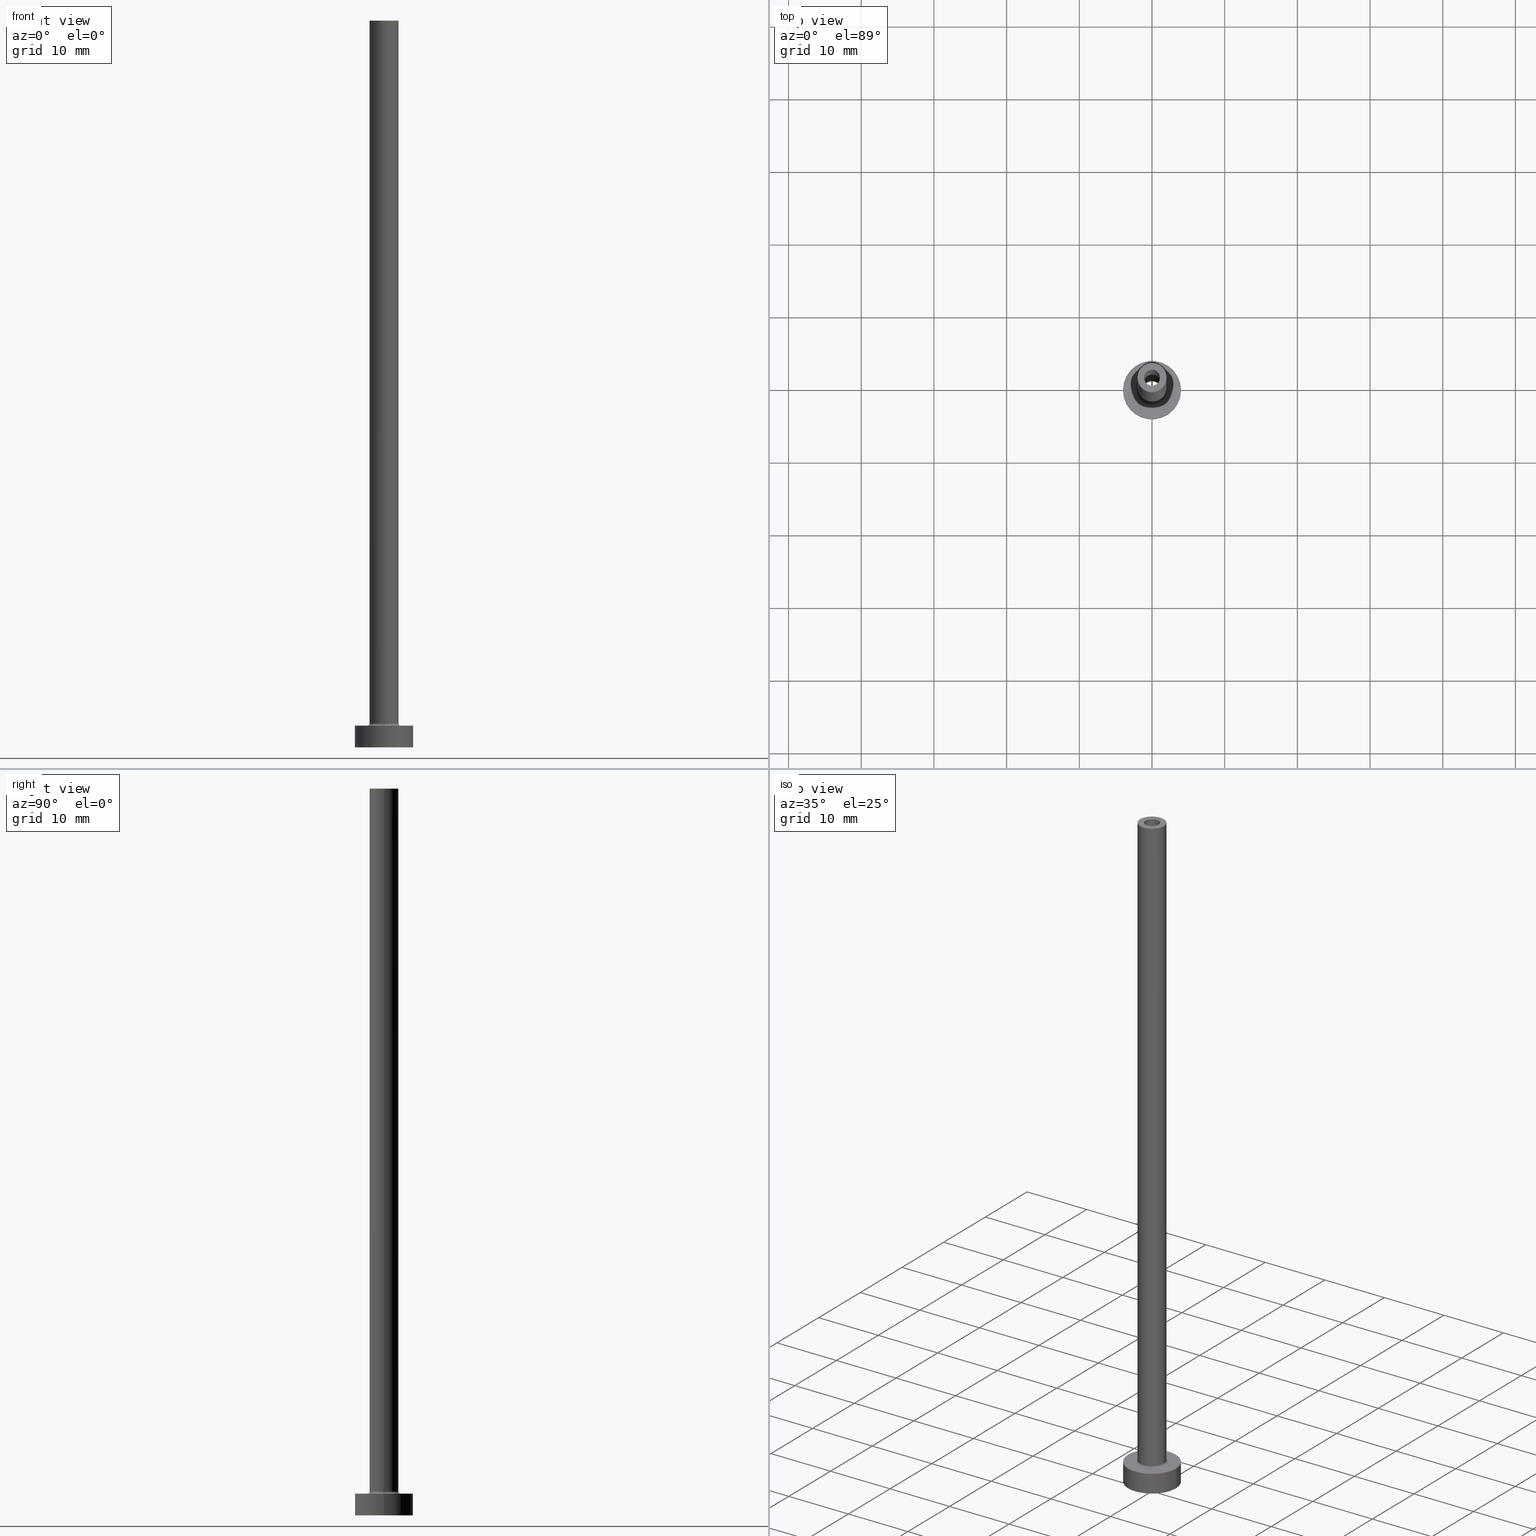
[diagram: canonical four-view strip — front | top / right | iso, engineering-drawing reading convention]
A machine part, canonical four-view strip (front | top / right | iso — engineering-drawing reading convention). The complete STEP part file that produces these views, byte-faithful:
ISO-10303-21;
HEADER;
FILE_DESCRIPTION (( 'STEP AP203' ),
    '1' );
FILE_NAME ('f12d.STEP',
    '2023-02-13T12:50:14',
    ( '' ),
    ( '' ),
    'SwSTEP 2.0',
    'SolidWorks 2019',
    '' );
FILE_SCHEMA (( 'CONFIG_CONTROL_DESIGN' ));
ENDSEC;

DATA;
#1 = ORIENTED_EDGE ( 'NONE', *, *, #113, .T. ) ;
#2 = DIRECTION ( 'NONE',  ( -1.000000000000000000, 0.000000000000000000, 0.000000000000000000 ) ) ;
#3 = CIRCLE ( 'NONE', #258, 1.100000000000000089 ) ;
#4 = APPROVAL_PERSON_ORGANIZATION ( #231, #61, #382 ) ;
#5 = ORIENTED_EDGE ( 'NONE', *, *, #443, .F. ) ;
#6 = DIRECTION ( 'NONE',  ( 0.000000000000000000, 0.000000000000000000, 1.000000000000000000 ) ) ;
#7 = EDGE_LOOP ( 'NONE', ( #195, #98, #68, #230 ) ) ;
#8 = DATE_AND_TIME ( #118, #378 ) ;
#9 = CARTESIAN_POINT ( 'NONE',  ( 0.000000000000000000, 0.000000000000000000, 3.000000000000000000 ) ) ;
#10 = PERSON_AND_ORGANIZATION_ROLE ( 'design_supplier' ) ;
#11 = CYLINDRICAL_SURFACE ( 'NONE', #271, 2.000000000000000000 ) ;
#12 = DATE_AND_TIME ( #307, #222 ) ;
#13 = ORIENTED_EDGE ( 'NONE', *, *, #232, .F. ) ;
#14 = CIRCLE ( 'NONE', #70, 4.000000000000000000 ) ;
#15 = LINE ( 'NONE', #227, #460 ) ;
#16 = EDGE_CURVE ( 'NONE', #356, #66, #377, .T. ) ;
#17 = DIRECTION ( 'NONE',  ( -0.000000000000000000, -0.000000000000000000, -1.000000000000000000 ) ) ;
#18 = VECTOR ( 'NONE', #57, 1000.000000000000000 ) ;
#19 = DIRECTION ( 'NONE',  ( 1.000000000000000000, 0.000000000000000000, 0.000000000000000000 ) ) ;
#20 = CARTESIAN_POINT ( 'NONE',  ( 0.000000000000000000, 0.000000000000000000, 3.000000000000000000 ) ) ;
#21 = ORIENTED_EDGE ( 'NONE', *, *, #147, .F. ) ;
#22 = ADVANCED_FACE ( 'NONE', ( #187, #48 ), #436, .F. ) ;
#23 = DATE_TIME_ROLE ( 'classification_date' ) ;
#24 = FACE_OUTER_BOUND ( 'NONE', #71, .T. ) ;
#25 = EDGE_CURVE ( 'NONE', #141, #418, #415, .T. ) ;
#26 = CC_DESIGN_APPROVAL ( #61, ( #131 ) ) ;
#27 = DIRECTION ( 'NONE',  ( 0.000000000000000000, 0.000000000000000000, -1.000000000000000000 ) ) ;
#28 = CARTESIAN_POINT ( 'NONE',  ( -4.000000000000000000, 0.000000000000000000, 3.000000000000000000 ) ) ;
#29 = ADVANCED_FACE ( 'NONE', ( #221 ), #152, .T. ) ;
#30 = FACE_OUTER_BOUND ( 'NONE', #93, .T. ) ;
#31 = LOCAL_TIME ( 13, 50, 14.00000000000000000, #297 ) ;
#32 = DIRECTION ( 'NONE',  ( 0.000000000000000000, 0.000000000000000000, 1.000000000000000000 ) ) ;
#33 = ORIENTED_EDGE ( 'NONE', *, *, #263, .F. ) ;
#34 = FACE_OUTER_BOUND ( 'NONE', #317, .T. ) ;
#35 = EDGE_LOOP ( 'NONE', ( #400, #428 ) ) ;
#36 = EDGE_CURVE ( 'NONE', #276, #214, #257, .T. ) ;
#37 = PRODUCT ( 'f12d', 'f12d', '', ( #155 ) ) ;
#38 = DIRECTION ( 'NONE',  ( 0.000000000000000000, 0.000000000000000000, -1.000000000000000000 ) ) ;
#39 = ORIENTED_EDGE ( 'NONE', *, *, #36, .T. ) ;
#40 = CYLINDRICAL_SURFACE ( 'NONE', #379, 4.000000000000000000 ) ;
#41 = AXIS2_PLACEMENT_3D ( 'NONE', #105, #6, #427 ) ;
#42 = EDGE_LOOP ( 'NONE', ( #340, #62, #306, #243 ) ) ;
#43 = PERSON_AND_ORGANIZATION ( #286, #408 ) ;
#44 = EDGE_LOOP ( 'NONE', ( #33, #381 ) ) ;
#45 = SECURITY_CLASSIFICATION_LEVEL ( 'unclassified' ) ;
#46 = EDGE_LOOP ( 'NONE', ( #236, #424, #360, #363 ) ) ;
#47 = CALENDAR_DATE ( 2023, 13, 2 ) ;
#48 = FACE_OUTER_BOUND ( 'NONE', #279, .T. ) ;
#49 = CIRCLE ( 'NONE', #328, 2.000000000000000000 ) ;
#50 = PERSON_AND_ORGANIZATION ( #286, #408 ) ;
#51 = DIRECTION ( 'NONE',  ( 0.000000000000000000, 0.000000000000000000, 1.000000000000000000 ) ) ;
#52 = DIRECTION ( 'NONE',  ( -0.000000000000000000, -0.000000000000000000, -1.000000000000000000 ) ) ;
#53 = DIRECTION ( 'NONE',  ( -0.000000000000000000, -0.000000000000000000, -1.000000000000000000 ) ) ;
#54 = DIRECTION ( 'NONE',  ( 0.000000000000000000, 0.000000000000000000, -1.000000000000000000 ) ) ;
#55 = EDGE_LOOP ( 'NONE', ( #322, #145 ) ) ;
#56 = SHAPE_DEFINITION_REPRESENTATION ( #361, #179 ) ;
#57 = DIRECTION ( 'NONE',  ( -0.000000000000000000, -0.000000000000000000, -1.000000000000000000 ) ) ;
#58 = APPROVAL ( #153, 'NEUR�EN�' ) ;
#59 = ORIENTED_EDGE ( 'NONE', *, *, #443, .T. ) ;
#60 = CARTESIAN_POINT ( 'NONE',  ( 2.000000000000000000, 2.449293598294705921E-16, 3.299999999999997158 ) ) ;
#61 = APPROVAL ( #289, 'NEUR�EN�' ) ;
#62 = ORIENTED_EDGE ( 'NONE', *, *, #126, .T. ) ;
#63 = CYLINDRICAL_SURFACE ( 'NONE', #207, 1.100000000000000089 ) ;
#64 = EDGE_CURVE ( 'NONE', #276, #108, #298, .T. ) ;
#65 = CYLINDRICAL_SURFACE ( 'NONE', #244, 2.000000000000000000 ) ;
#66 = VERTEX_POINT ( 'NONE', #84 ) ;
#67 = CYLINDRICAL_SURFACE ( 'NONE', #83, 1.250000000000000000 ) ;
#68 = ORIENTED_EDGE ( 'NONE', *, *, #449, .T. ) ;
#69 = DIRECTION ( 'NONE',  ( 0.000000000000000000, 0.000000000000000000, -1.000000000000000000 ) ) ;
#70 = AXIS2_PLACEMENT_3D ( 'NONE', #302, #295, #327 ) ;
#71 = EDGE_LOOP ( 'NONE', ( #396, #212, #368, #457 ) ) ;
#72 = DIRECTION ( 'NONE',  ( 0.000000000000000000, 0.000000000000000000, -1.000000000000000000 ) ) ;
#73 = VERTEX_POINT ( 'NONE', #82 ) ;
#74 = APPROVAL_STATUS ( 'not_yet_approved' ) ;
#75 = ORIENTED_EDGE ( 'NONE', *, *, #113, .F. ) ;
#76 = EDGE_CURVE ( 'NONE', #137, #418, #15, .T. ) ;
#77 = PERSON_AND_ORGANIZATION_ROLE ( 'classification_officer' ) ;
#78 = CARTESIAN_POINT ( 'NONE',  ( 1.250000000000000000, 1.530808498934191571E-16, 0.000000000000000000 ) ) ;
#79 = CARTESIAN_POINT ( 'NONE',  ( 0.000000000000000000, 0.000000000000000000, 0.000000000000000000 ) ) ;
#80 = CARTESIAN_POINT ( 'NONE',  ( 2.000000000000000000, 2.449293598294705921E-16, 100.0000000000000000 ) ) ;
#81 = APPLICATION_PROTOCOL_DEFINITION ( 'international standard', 'config_control_design', 1994, #273 ) ;
#82 = CARTESIAN_POINT ( 'NONE',  ( -2.000000000000000000, 0.000000000000000000, 3.299999999999997158 ) ) ;
#83 = AXIS2_PLACEMENT_3D ( 'NONE', #461, #72, #2 ) ;
#84 = CARTESIAN_POINT ( 'NONE',  ( 4.000000000000000000, 4.898587196589412829E-16, 0.000000000000000000 ) ) ;
#85 = CARTESIAN_POINT ( 'NONE',  ( 4.000000000000000000, 4.898587196589412829E-16, 3.000000000000000000 ) ) ;
#86 = ADVANCED_FACE ( 'NONE', ( #150 ), #11, .T. ) ;
#87 = DIRECTION ( 'NONE',  ( 1.000000000000000000, 0.000000000000000000, 0.000000000000000000 ) ) ;
#88 = AXIS2_PLACEMENT_3D ( 'NONE', #255, #51, #407 ) ;
#89 = APPROVAL_PERSON_ORGANIZATION ( #369, #58, #435 ) ;
#90 = DATE_AND_TIME ( #256, #353 ) ;
#91 = LINE ( 'NONE', #28, #18 ) ;
#92 = PLANE ( 'NONE',  #162 ) ;
#93 = EDGE_LOOP ( 'NONE', ( #75, #217, #130, #248 ) ) ;
#94 = DIRECTION ( 'NONE',  ( -1.000000000000000000, 1.224646799147353207E-16, 0.000000000000000000 ) ) ;
#95 = AXIS2_PLACEMENT_3D ( 'NONE', #240, #169, #38 ) ;
#96 = CARTESIAN_POINT ( 'NONE',  ( 0.000000000000000000, 0.000000000000000000, 3.299999999999997158 ) ) ;
#97 = ORIENTED_EDGE ( 'NONE', *, *, #310, .F. ) ;
#98 = ORIENTED_EDGE ( 'NONE', *, *, #164, .F. ) ;
#99 = EDGE_CURVE ( 'NONE', #183, #356, #14, .T. ) ;
#100 = DIRECTION ( 'NONE',  ( 1.000000000000000000, 0.000000000000000000, 0.000000000000000000 ) ) ;
#101 = VERTEX_POINT ( 'NONE', #331 ) ;
#102 = APPROVAL_PERSON_ORGANIZATION ( #50, #402, #333 ) ;
#103 = CARTESIAN_POINT ( 'NONE',  ( 0.000000000000000000, 0.000000000000000000, 0.000000000000000000 ) ) ;
#104 = EDGE_LOOP ( 'NONE', ( #409, #410 ) ) ;
#105 = CARTESIAN_POINT ( 'NONE',  ( 0.000000000000000000, 0.000000000000000000, 0.000000000000000000 ) ) ;
#106 = VERTEX_POINT ( 'NONE', #439 ) ;
#107 = CARTESIAN_POINT ( 'NONE',  ( -2.000000000000000000, 0.000000000000000000, 100.0000000000000000 ) ) ;
#108 = VERTEX_POINT ( 'NONE', #442 ) ;
#109 = EDGE_CURVE ( 'NONE', #234, #312, #254, .T. ) ;
#110 = APPROVAL_DATE_TIME ( #413, #402 ) ;
#111 = AXIS2_PLACEMENT_3D ( 'NONE', #103, #278, #172 ) ;
#112 = DIRECTION ( 'NONE',  ( 0.000000000000000000, 0.000000000000000000, -1.000000000000000000 ) ) ;
#113 = EDGE_CURVE ( 'NONE', #106, #140, #154, .T. ) ;
#114 = COORDINATED_UNIVERSAL_TIME_OFFSET ( 1, 0, .AHEAD. ) ;
#115 = CARTESIAN_POINT ( 'NONE',  ( 0.000000000000000000, 0.000000000000000000, 100.0000000000000000 ) ) ;
#116 = AXIS2_PLACEMENT_3D ( 'NONE', #440, #224, #438 ) ;
#117 = EDGE_CURVE ( 'NONE', #106, #101, #167, .T. ) ;
#118 = CALENDAR_DATE ( 2023, 13, 2 ) ;
#119 = LINE ( 'NONE', #262, #292 ) ;
#120 = DIRECTION ( 'NONE',  ( -0.000000000000000000, -0.000000000000000000, -1.000000000000000000 ) ) ;
#121 = CIRCLE ( 'NONE', #387, 2.000000000000000000 ) ;
#122 = CIRCLE ( 'NONE', #111, 1.250000000000000000 ) ;
#123 = CARTESIAN_POINT ( 'NONE',  ( 0.000000000000000000, 0.000000000000000000, 65.00000000000000000 ) ) ;
#124 = CARTESIAN_POINT ( 'NONE',  ( 0.000000000000000000, 0.000000000000000000, 3.299999999999997158 ) ) ;
#125 = ORIENTED_EDGE ( 'NONE', *, *, #411, .T. ) ;
#126 = EDGE_CURVE ( 'NONE', #354, #141, #119, .T. ) ;
#127 = APPROVAL_DATE_TIME ( #186, #58 ) ;
#128 = FACE_OUTER_BOUND ( 'NONE', #55, .T. ) ;
#129 = AXIS2_PLACEMENT_3D ( 'NONE', #202, #239, #421 ) ;
#130 = ORIENTED_EDGE ( 'NONE', *, *, #316, .T. ) ;
#131 = SECURITY_CLASSIFICATION ( '', '', #45 ) ;
#132 = DIRECTION ( 'NONE',  ( 1.000000000000000000, 0.000000000000000000, 0.000000000000000000 ) ) ;
#133 = DIRECTION ( 'NONE',  ( 1.224646799147353207E-16, 1.000000000000000000, -0.000000000000000000 ) ) ;
#134 = FACE_OUTER_BOUND ( 'NONE', #315, .T. ) ;
#135 = CIRCLE ( 'NONE', #129, 1.100000000000000089 ) ;
#136 = DIRECTION ( 'NONE',  ( -1.000000000000000000, 0.000000000000000000, 0.000000000000000000 ) ) ;
#137 = VERTEX_POINT ( 'NONE', #404 ) ;
#138 = EDGE_CURVE ( 'NONE', #356, #183, #420, .T. ) ;
#139 = CARTESIAN_POINT ( 'NONE',  ( 0.000000000000000000, 0.000000000000000000, 3.299999999999997158 ) ) ;
#140 = VERTEX_POINT ( 'NONE', #78 ) ;
#141 = VERTEX_POINT ( 'NONE', #188 ) ;
#142 = AXIS2_PLACEMENT_3D ( 'NONE', #338, #161, #309 ) ;
#143 = AXIS2_PLACEMENT_3D ( 'NONE', #139, #32, #425 ) ;
#144 = LINE ( 'NONE', #107, #394 ) ;
#145 = ORIENTED_EDGE ( 'NONE', *, *, #261, .F. ) ;
#146 = FACE_OUTER_BOUND ( 'NONE', #46, .T. ) ;
#147 = EDGE_CURVE ( 'NONE', #312, #234, #215, .T. ) ;
#148 = ORIENTED_EDGE ( 'NONE', *, *, #117, .F. ) ;
#149 = COORDINATED_UNIVERSAL_TIME_OFFSET ( 1, 0, .AHEAD. ) ;
#150 = FACE_OUTER_BOUND ( 'NONE', #7, .T. ) ;
#151 = AXIS2_PLACEMENT_3D ( 'NONE', #156, #120, #380 ) ;
#152 = CYLINDRICAL_SURFACE ( 'NONE', #375, 4.000000000000000000 ) ;
#153 = APPROVAL_STATUS ( 'not_yet_approved' ) ;
#154 = LINE ( 'NONE', #299, #189 ) ;
#155 = MECHANICAL_CONTEXT ( 'NONE', #273, 'mechanical' ) ;
#156 = CARTESIAN_POINT ( 'NONE',  ( 0.000000000000000000, 0.000000000000000000, 3.000000000000000000 ) ) ;
#157 = DIRECTION ( 'NONE',  ( -1.000000000000000000, 0.000000000000000000, 0.000000000000000000 ) ) ;
#158 = DIRECTION ( 'NONE',  ( 0.000000000000000000, 0.000000000000000000, 1.000000000000000000 ) ) ;
#159 = FACE_OUTER_BOUND ( 'NONE', #247, .T. ) ;
#160 = PERSON_AND_ORGANIZATION ( #286, #408 ) ;
#161 = DIRECTION ( 'NONE',  ( 0.000000000000000000, 0.000000000000000000, 1.000000000000000000 ) ) ;
#162 = AXIS2_PLACEMENT_3D ( 'NONE', #20, #308, #196 ) ;
#163 = CIRCLE ( 'NONE', #41, 4.000000000000000000 ) ;
#164 = EDGE_CURVE ( 'NONE', #108, #276, #49, .T. ) ;
#165 = DIRECTION ( 'NONE',  ( -1.000000000000000000, 0.000000000000000000, 0.000000000000000000 ) ) ;
#166 = DESIGN_CONTEXT ( 'detailed design', #334, 'design' ) ;
#167 = CIRCLE ( 'NONE', #432, 1.250000000000000000 ) ;
#168 = DIRECTION ( 'NONE',  ( 0.000000000000000000, 0.000000000000000000, 1.000000000000000000 ) ) ;
#169 = DIRECTION ( 'NONE',  ( 0.000000000000000000, -1.000000000000000000, 0.000000000000000000 ) ) ;
#170 = LINE ( 'NONE', #204, #364 ) ;
#171 = ORIENTED_EDGE ( 'NONE', *, *, #430, .T. ) ;
#172 = DIRECTION ( 'NONE',  ( 1.000000000000000000, 0.000000000000000000, 0.000000000000000000 ) ) ;
#173 = EDGE_LOOP ( 'NONE', ( #434, #367, #197, #13 ) ) ;
#174 = PRODUCT_RELATED_PRODUCT_CATEGORY ( 'detail', '', ( #37 ) ) ;
#175 = DIRECTION ( 'NONE',  ( -1.000000000000000000, 0.000000000000000000, 0.000000000000000000 ) ) ;
#176 = ORIENTED_EDGE ( 'NONE', *, *, #64, .F. ) ;
#177 = ADVANCED_FACE ( 'NONE', ( #414, #228 ), #92, .T. ) ;
#178 = CIRCLE ( 'NONE', #329, 1.250000000000000000 ) ;
#179 = ADVANCED_BREP_SHAPE_REPRESENTATION ( 'f12d', ( #324, #193 ), #238 ) ;
#180 = DIRECTION ( 'NONE',  ( 0.000000000000000000, 0.000000000000000000, -1.000000000000000000 ) ) ;
#181 = ORIENTED_EDGE ( 'NONE', *, *, #266, .T. ) ;
#182 = PERSON_AND_ORGANIZATION ( #286, #408 ) ;
#183 = VERTEX_POINT ( 'NONE', #268 ) ;
#184 = DIRECTION ( 'NONE',  ( 0.000000000000000000, 0.000000000000000000, -1.000000000000000000 ) ) ;
#185 = ADVANCED_FACE ( 'NONE', ( #159 ), #305, .F. ) ;
#186 = DATE_AND_TIME ( #253, #31 ) ;
#187 = FACE_BOUND ( 'NONE', #385, .T. ) ;
#188 = CARTESIAN_POINT ( 'NONE',  ( 1.100000000000000089, 1.347111479062088503E-16, 65.00000000000000000 ) ) ;
#189 = VECTOR ( 'NONE', #112, 1000.000000000000000 ) ;
#190 = DIRECTION ( 'NONE',  ( 0.000000000000000000, 0.000000000000000000, 1.000000000000000000 ) ) ;
#191 = DIRECTION ( 'NONE',  ( 0.000000000000000000, 0.000000000000000000, 1.000000000000000000 ) ) ;
#192 = CIRCLE ( 'NONE', #283, 0.2999999999999999334 ) ;
#193 = AXIS2_PLACEMENT_3D ( 'NONE', #79, #220, #341 ) ;
#194 = DIRECTION ( 'NONE',  ( 0.000000000000000000, 0.000000000000000000, 1.000000000000000000 ) ) ;
#195 = ORIENTED_EDGE ( 'NONE', *, *, #36, .F. ) ;
#196 = DIRECTION ( 'NONE',  ( 1.000000000000000000, 0.000000000000000000, -0.000000000000000000 ) ) ;
#197 = ORIENTED_EDGE ( 'NONE', *, *, #261, .T. ) ;
#198 = FACE_BOUND ( 'NONE', #200, .T. ) ;
#199 = AXIS2_PLACEMENT_3D ( 'NONE', #96, #191, #19 ) ;
#200 = EDGE_LOOP ( 'NONE', ( #288, #343 ) ) ;
#201 = CC_DESIGN_PERSON_AND_ORGANIZATION_ASSIGNMENT ( #182, #446, ( #37 ) ) ;
#202 = CARTESIAN_POINT ( 'NONE',  ( 0.000000000000000000, 0.000000000000000000, 100.0000000000000000 ) ) ;
#203 = DIRECTION ( 'NONE',  ( -0.000000000000000000, -0.000000000000000000, -1.000000000000000000 ) ) ;
#204 = CARTESIAN_POINT ( 'NONE',  ( -1.250000000000000000, 0.000000000000000000, 68.53553390593272354 ) ) ;
#205 = UNCERTAINTY_MEASURE_WITH_UNIT (LENGTH_MEASURE( 1.000000000000000082E-05 ), #391, 'distance_accuracy_value', 'NONE');
#206 = VERTEX_POINT ( 'NONE', #447 ) ;
#207 = AXIS2_PLACEMENT_3D ( 'NONE', #345, #27, #165 ) ;
#208 = CARTESIAN_POINT ( 'NONE',  ( 0.000000000000000000, 0.000000000000000000, 3.299999999999997158 ) ) ;
#209 = ORIENTED_EDGE ( 'NONE', *, *, #304, .F. ) ;
#210 = AXIS2_PLACEMENT_3D ( 'NONE', #300, #190, #219 ) ;
#211 = CARTESIAN_POINT ( 'NONE',  ( 0.000000000000000000, 0.000000000000000000, 3.000000000000000000 ) ) ;
#212 = ORIENTED_EDGE ( 'NONE', *, *, #371, .T. ) ;
#213 = CARTESIAN_POINT ( 'NONE',  ( 4.000000000000000000, 4.898587196589412829E-16, 3.000000000000000000 ) ) ;
#214 = VERTEX_POINT ( 'NONE', #60 ) ;
#215 = CIRCLE ( 'NONE', #151, 2.299999999999999822 ) ;
#216 = DATE_TIME_ROLE ( 'creation_date' ) ;
#217 = ORIENTED_EDGE ( 'NONE', *, *, #117, .T. ) ;
#218 = EDGE_CURVE ( 'NONE', #422, #140, #267, .T. ) ;
#219 = DIRECTION ( 'NONE',  ( 1.000000000000000000, 0.000000000000000000, -0.000000000000000000 ) ) ;
#220 = DIRECTION ( 'NONE',  ( 0.000000000000000000, 0.000000000000000000, 1.000000000000000000 ) ) ;
#221 = FACE_OUTER_BOUND ( 'NONE', #173, .T. ) ;
#222 = LOCAL_TIME ( 13, 50, 14.00000000000000000, #294 ) ;
#223 = DIRECTION ( 'NONE',  ( 1.000000000000000000, 0.000000000000000000, 0.000000000000000000 ) ) ;
#224 = DIRECTION ( 'NONE',  ( -0.000000000000000000, -0.000000000000000000, -1.000000000000000000 ) ) ;
#225 = VECTOR ( 'NONE', #17, 1000.000000000000000 ) ;
#226 = ADVANCED_FACE ( 'NONE', ( #198, #128 ), #384, .F. ) ;
#227 = CARTESIAN_POINT ( 'NONE',  ( -1.100000000000000089, 0.000000000000000000, 100.0000000000000000 ) ) ;
#228 = FACE_OUTER_BOUND ( 'NONE', #104, .T. ) ;
#229 = TOROIDAL_SURFACE ( 'NONE', #441, 2.299999999999999822, 0.2999999999999999889 ) ;
#230 = ORIENTED_EDGE ( 'NONE', *, *, #304, .T. ) ;
#231 = PERSON_AND_ORGANIZATION ( #286, #408 ) ;
#232 = EDGE_CURVE ( 'NONE', #183, #206, #91, .T. ) ;
#233 = DIRECTION ( 'NONE',  ( 0.000000000000000000, 0.000000000000000000, 1.000000000000000000 ) ) ;
#234 = VERTEX_POINT ( 'NONE', #388 ) ;
#235 = CARTESIAN_POINT ( 'NONE',  ( 0.000000000000000000, 0.000000000000000000, 68.53553390593272354 ) ) ;
#236 = ORIENTED_EDGE ( 'NONE', *, *, #16, .F. ) ;
#237 = PLANE ( 'NONE',  #344 ) ;
#238 =( GEOMETRIC_REPRESENTATION_CONTEXT ( 3 ) GLOBAL_UNCERTAINTY_ASSIGNED_CONTEXT ( ( #205 ) ) GLOBAL_UNIT_ASSIGNED_CONTEXT ( ( #391, #245, #423 ) ) REPRESENTATION_CONTEXT ( 'NONE', 'WORKASPACE' ) );
#239 = DIRECTION ( 'NONE',  ( 0.000000000000000000, 0.000000000000000000, 1.000000000000000000 ) ) ;
#240 = CARTESIAN_POINT ( 'NONE',  ( 2.299999999999999822, 0.000000000000000000, 3.299999999999997158 ) ) ;
#241 = ORIENTED_EDGE ( 'NONE', *, *, #291, .T. ) ;
#242 = DIRECTION ( 'NONE',  ( 0.000000000000000000, 0.000000000000000000, 1.000000000000000000 ) ) ;
#243 = ORIENTED_EDGE ( 'NONE', *, *, #76, .F. ) ;
#244 = AXIS2_PLACEMENT_3D ( 'NONE', #314, #203, #175 ) ;
#245 =( NAMED_UNIT ( * ) PLANE_ANGLE_UNIT ( ) SI_UNIT ( $, .RADIAN. ) );
#246 = ADVANCED_FACE ( 'NONE', ( #24 ), #63, .F. ) ;
#247 = EDGE_LOOP ( 'NONE', ( #59, #1, #171, #395 ) ) ;
#248 = ORIENTED_EDGE ( 'NONE', *, *, #218, .T. ) ;
#249 = CC_DESIGN_PERSON_AND_ORGANIZATION_ASSIGNMENT ( #251, #265, ( #277 ) ) ;
#250 = ORIENTED_EDGE ( 'NONE', *, *, #449, .F. ) ;
#251 = PERSON_AND_ORGANIZATION ( #286, #408 ) ;
#252 = DIRECTION ( 'NONE',  ( 0.000000000000000000, 0.000000000000000000, -1.000000000000000000 ) ) ;
#253 = CALENDAR_DATE ( 2023, 13, 2 ) ;
#254 = CIRCLE ( 'NONE', #116, 2.299999999999999822 ) ;
#255 = CARTESIAN_POINT ( 'NONE',  ( 0.000000000000000000, 0.000000000000000000, 3.000000000000000000 ) ) ;
#256 = CALENDAR_DATE ( 2023, 13, 2 ) ;
#257 = LINE ( 'NONE', #80, #225 ) ;
#258 = AXIS2_PLACEMENT_3D ( 'NONE', #444, #158, #303 ) ;
#259 = CC_DESIGN_SECURITY_CLASSIFICATION ( #131, ( #437 ) ) ;
#260 = DIRECTION ( 'NONE',  ( 0.000000000000000000, 0.000000000000000000, 1.000000000000000000 ) ) ;
#261 = EDGE_CURVE ( 'NONE', #66, #206, #352, .T. ) ;
#262 = CARTESIAN_POINT ( 'NONE',  ( 1.100000000000000089, 1.347111479062088503E-16, 100.0000000000000000 ) ) ;
#263 = EDGE_CURVE ( 'NONE', #137, #354, #135, .T. ) ;
#264 = DIRECTION ( 'NONE',  ( -1.000000000000000000, 0.000000000000000000, 0.000000000000000000 ) ) ;
#265 = PERSON_AND_ORGANIZATION_ROLE ( 'creator' ) ;
#266 = EDGE_CURVE ( 'NONE', #73, #312, #192, .T. ) ;
#267 = CIRCLE ( 'NONE', #401, 1.250000000000000000 ) ;
#268 = CARTESIAN_POINT ( 'NONE',  ( -4.000000000000000000, 0.000000000000000000, 3.000000000000000000 ) ) ;
#269 = CC_DESIGN_DATE_AND_TIME_ASSIGNMENT ( #90, #23, ( #131 ) ) ;
#270 = DIRECTION ( 'NONE',  ( 1.000000000000000000, 0.000000000000000000, -0.000000000000000000 ) ) ;
#271 = AXIS2_PLACEMENT_3D ( 'NONE', #376, #370, #157 ) ;
#272 = FACE_BOUND ( 'NONE', #44, .T. ) ;
#273 = APPLICATION_CONTEXT ( 'configuration controlled 3d designs of mechanical parts and assemblies' ) ;
#274 = ADVANCED_FACE ( 'NONE', ( #272, #419 ), #237, .T. ) ;
#275 = DIRECTION ( 'NONE',  ( 0.000000000000000000, 0.000000000000000000, 1.000000000000000000 ) ) ;
#276 = VERTEX_POINT ( 'NONE', #453 ) ;
#277 = PRODUCT_DEFINITION ( 'NEZN�M�', '', #437, #166 ) ;
#278 = DIRECTION ( 'NONE',  ( -0.000000000000000000, -0.000000000000000000, -1.000000000000000000 ) ) ;
#279 = EDGE_LOOP ( 'NONE', ( #5, #148 ) ) ;
#280 = ADVANCED_FACE ( 'NONE', ( #134 ), #454, .F. ) ;
#281 = CARTESIAN_POINT ( 'NONE',  ( 1.100000000000000089, 1.347111479062088503E-16, 100.0000000000000000 ) ) ;
#282 = ORIENTED_EDGE ( 'NONE', *, *, #147, .T. ) ;
#283 = AXIS2_PLACEMENT_3D ( 'NONE', #452, #133, #94 ) ;
#284 = DIRECTION ( 'NONE',  ( -1.000000000000000000, 0.000000000000000000, 0.000000000000000000 ) ) ;
#285 = ORIENTED_EDGE ( 'NONE', *, *, #25, .T. ) ;
#286 = PERSON ( 'NEUR�EN�', 'NEUR�EN�', 'NEUR�EN�', ('NEUR�EN�'), ('NEUR�EN�'), ('NEUR�EN�') ) ;
#287 = CYLINDRICAL_SURFACE ( 'NONE', #372, 1.100000000000000089 ) ;
#288 = ORIENTED_EDGE ( 'NONE', *, *, #218, .F. ) ;
#289 = APPROVAL_STATUS ( 'not_yet_approved' ) ;
#290 = CARTESIAN_POINT ( 'NONE',  ( 0.000000000000000000, 0.000000000000000000, 65.00000000000000000 ) ) ;
#291 = EDGE_CURVE ( 'NONE', #418, #141, #3, .T. ) ;
#292 = VECTOR ( 'NONE', #252, 1000.000000000000000 ) ;
#293 = CC_DESIGN_APPROVAL ( #58, ( #437 ) ) ;
#294 = COORDINATED_UNIVERSAL_TIME_OFFSET ( 1, 0, .AHEAD. ) ;
#295 = DIRECTION ( 'NONE',  ( 0.000000000000000000, 0.000000000000000000, 1.000000000000000000 ) ) ;
#296 = CC_DESIGN_PERSON_AND_ORGANIZATION_ASSIGNMENT ( #160, #10, ( #437 ) ) ;
#297 = COORDINATED_UNIVERSAL_TIME_OFFSET ( 1, 0, .AHEAD. ) ;
#298 = CIRCLE ( 'NONE', #358, 2.000000000000000000 ) ;
#299 = CARTESIAN_POINT ( 'NONE',  ( 1.250000000000000000, 1.530808498934191571E-16, 68.53553390593272354 ) ) ;
#300 = CARTESIAN_POINT ( 'NONE',  ( 0.000000000000000000, 0.000000000000000000, 65.00000000000000000 ) ) ;
#301 = CIRCLE ( 'NONE', #95, 0.2999999999999999334 ) ;
#302 = CARTESIAN_POINT ( 'NONE',  ( 0.000000000000000000, 0.000000000000000000, 3.000000000000000000 ) ) ;
#303 = DIRECTION ( 'NONE',  ( 1.000000000000000000, 0.000000000000000000, 0.000000000000000000 ) ) ;
#304 = EDGE_CURVE ( 'NONE', #73, #214, #121, .T. ) ;
#305 = CYLINDRICAL_SURFACE ( 'NONE', #320, 1.250000000000000000 ) ;
#306 = ORIENTED_EDGE ( 'NONE', *, *, #291, .F. ) ;
#307 = CALENDAR_DATE ( 2023, 13, 2 ) ;
#308 = DIRECTION ( 'NONE',  ( 0.000000000000000000, 0.000000000000000000, 1.000000000000000000 ) ) ;
#309 = DIRECTION ( 'NONE',  ( 1.000000000000000000, 0.000000000000000000, 0.000000000000000000 ) ) ;
#310 = EDGE_CURVE ( 'NONE', #214, #234, #301, .T. ) ;
#311 = DIRECTION ( 'NONE',  ( 1.000000000000000000, 0.000000000000000000, -0.000000000000000000 ) ) ;
#312 = VERTEX_POINT ( 'NONE', #350 ) ;
#313 = AXIS2_PLACEMENT_3D ( 'NONE', #393, #242, #321 ) ;
#314 = CARTESIAN_POINT ( 'NONE',  ( 0.000000000000000000, 0.000000000000000000, 100.0000000000000000 ) ) ;
#315 = EDGE_LOOP ( 'NONE', ( #209, #181, #459, #97 ) ) ;
#316 = EDGE_CURVE ( 'NONE', #101, #422, #170, .T. ) ;
#317 = EDGE_LOOP ( 'NONE', ( #176, #39, #125, #250 ) ) ;
#318 = CARTESIAN_POINT ( 'NONE',  ( -1.250000000000000000, 0.000000000000000000, 0.000000000000000000 ) ) ;
#319 = EDGE_LOOP ( 'NONE', ( #347, #282 ) ) ;
#320 = AXIS2_PLACEMENT_3D ( 'NONE', #235, #54, #264 ) ;
#321 = DIRECTION ( 'NONE',  ( 1.000000000000000000, 0.000000000000000000, 0.000000000000000000 ) ) ;
#322 = ORIENTED_EDGE ( 'NONE', *, *, #386, .F. ) ;
#323 = CLOSED_SHELL ( 'NONE', ( #365, #185, #280, #399, #29, #348, #177, #226, #86, #274, #405, #332, #22, #246 ) ) ;
#324 = MANIFOLD_SOLID_BREP ( 'Odebrat vysunut�m4', #323 ) ;
#325 = APPLICATION_PROTOCOL_DEFINITION ( 'international standard', 'config_control_design', 1994, #334 ) ;
#326 = DIRECTION ( 'NONE',  ( 1.000000000000000000, 0.000000000000000000, 0.000000000000000000 ) ) ;
#327 = DIRECTION ( 'NONE',  ( 1.000000000000000000, 0.000000000000000000, 0.000000000000000000 ) ) ;
#328 = AXIS2_PLACEMENT_3D ( 'NONE', #339, #194, #417 ) ;
#329 = AXIS2_PLACEMENT_3D ( 'NONE', #433, #429, #100 ) ;
#330 = COORDINATED_UNIVERSAL_TIME_OFFSET ( 1, 0, .AHEAD. ) ;
#331 = CARTESIAN_POINT ( 'NONE',  ( -1.250000000000000000, 0.000000000000000000, 65.00000000000000000 ) ) ;
#332 = ADVANCED_FACE ( 'NONE', ( #30 ), #67, .F. ) ;
#333 = APPROVAL_ROLE ( '' ) ;
#334 = APPLICATION_CONTEXT ( 'configuration controlled 3d designs of mechanical parts and assemblies' ) ;
#335 = DIRECTION ( 'NONE',  ( -1.000000000000000000, 0.000000000000000000, 0.000000000000000000 ) ) ;
#336 = DIRECTION ( 'NONE',  ( 0.000000000000000000, 0.000000000000000000, 1.000000000000000000 ) ) ;
#337 = AXIS2_PLACEMENT_3D ( 'NONE', #390, #233, #270 ) ;
#338 = CARTESIAN_POINT ( 'NONE',  ( 0.000000000000000000, 0.000000000000000000, 0.000000000000000000 ) ) ;
#339 = CARTESIAN_POINT ( 'NONE',  ( 0.000000000000000000, 0.000000000000000000, 100.0000000000000000 ) ) ;
#340 = ORIENTED_EDGE ( 'NONE', *, *, #263, .T. ) ;
#341 = DIRECTION ( 'NONE',  ( 1.000000000000000000, 0.000000000000000000, 0.000000000000000000 ) ) ;
#342 = DIRECTION ( 'NONE',  ( -0.000000000000000000, -0.000000000000000000, -1.000000000000000000 ) ) ;
#343 = ORIENTED_EDGE ( 'NONE', *, *, #430, .F. ) ;
#344 = AXIS2_PLACEMENT_3D ( 'NONE', #349, #168, #311 ) ;
#345 = CARTESIAN_POINT ( 'NONE',  ( 0.000000000000000000, 0.000000000000000000, 100.0000000000000000 ) ) ;
#346 = CC_DESIGN_APPROVAL ( #402, ( #277 ) ) ;
#347 = ORIENTED_EDGE ( 'NONE', *, *, #109, .T. ) ;
#348 = ADVANCED_FACE ( 'NONE', ( #146 ), #40, .T. ) ;
#349 = CARTESIAN_POINT ( 'NONE',  ( 0.000000000000000000, 0.000000000000000000, 100.0000000000000000 ) ) ;
#350 = CARTESIAN_POINT ( 'NONE',  ( -2.299999999999999822, 2.816687638038912056E-16, 2.999999999999998668 ) ) ;
#351 = DIRECTION ( 'NONE',  ( 1.000000000000000000, 0.000000000000000000, 0.000000000000000000 ) ) ;
#352 = CIRCLE ( 'NONE', #142, 4.000000000000000000 ) ;
#353 = LOCAL_TIME ( 13, 50, 14.00000000000000000, #330 ) ;
#354 = VERTEX_POINT ( 'NONE', #281 ) ;
#355 = DIRECTION ( 'NONE',  ( -0.000000000000000000, -0.000000000000000000, -1.000000000000000000 ) ) ;
#356 = VERTEX_POINT ( 'NONE', #213 ) ;
#357 = CC_DESIGN_PERSON_AND_ORGANIZATION_ASSIGNMENT ( #43, #77, ( #131 ) ) ;
#358 = AXIS2_PLACEMENT_3D ( 'NONE', #115, #336, #326 ) ;
#359 = CARTESIAN_POINT ( 'NONE',  ( 0.000000000000000000, 0.000000000000000000, 100.0000000000000000 ) ) ;
#360 = ORIENTED_EDGE ( 'NONE', *, *, #232, .T. ) ;
#361 = PRODUCT_DEFINITION_SHAPE ( 'NONE', 'NONE',  #277 ) ;
#362 = FACE_OUTER_BOUND ( 'NONE', #42, .T. ) ;
#363 = ORIENTED_EDGE ( 'NONE', *, *, #386, .T. ) ;
#364 = VECTOR ( 'NONE', #69, 1000.000000000000000 ) ;
#365 = ADVANCED_FACE ( 'NONE', ( #362 ), #287, .F. ) ;
#366 = PERSON_AND_ORGANIZATION ( #286, #408 ) ;
#367 = ORIENTED_EDGE ( 'NONE', *, *, #16, .T. ) ;
#368 = ORIENTED_EDGE ( 'NONE', *, *, #76, .T. ) ;
#369 = PERSON_AND_ORGANIZATION ( #286, #408 ) ;
#370 = DIRECTION ( 'NONE',  ( -0.000000000000000000, -0.000000000000000000, -1.000000000000000000 ) ) ;
#371 = EDGE_CURVE ( 'NONE', #354, #137, #389, .T. ) ;
#372 = AXIS2_PLACEMENT_3D ( 'NONE', #359, #180, #284 ) ;
#373 = DIRECTION ( 'NONE',  ( 1.000000000000000000, 0.000000000000000000, 0.000000000000000000 ) ) ;
#374 = AXIS2_PLACEMENT_3D ( 'NONE', #290, #406, #223 ) ;
#375 = AXIS2_PLACEMENT_3D ( 'NONE', #9, #53, #335 ) ;
#376 = CARTESIAN_POINT ( 'NONE',  ( 0.000000000000000000, 0.000000000000000000, 100.0000000000000000 ) ) ;
#377 = LINE ( 'NONE', #85, #416 ) ;
#378 = LOCAL_TIME ( 13, 50, 14.00000000000000000, #149 ) ;
#379 = AXIS2_PLACEMENT_3D ( 'NONE', #211, #397, #136 ) ;
#380 = DIRECTION ( 'NONE',  ( 1.000000000000000000, 0.000000000000000000, 0.000000000000000000 ) ) ;
#381 = ORIENTED_EDGE ( 'NONE', *, *, #371, .F. ) ;
#382 = APPROVAL_ROLE ( '' ) ;
#383 = CC_DESIGN_PERSON_AND_ORGANIZATION_ASSIGNMENT ( #366, #403, ( #437 ) ) ;
#384 = PLANE ( 'NONE',  #337 ) ;
#385 = EDGE_LOOP ( 'NONE', ( #241, #285 ) ) ;
#386 = EDGE_CURVE ( 'NONE', #206, #66, #163, .T. ) ;
#387 = AXIS2_PLACEMENT_3D ( 'NONE', #124, #412, #87 ) ;
#388 = CARTESIAN_POINT ( 'NONE',  ( 2.299999999999999822, 0.000000000000000000, 2.999999999999998668 ) ) ;
#389 = CIRCLE ( 'NONE', #313, 1.100000000000000089 ) ;
#390 = CARTESIAN_POINT ( 'NONE',  ( 0.000000000000000000, 0.000000000000000000, 0.000000000000000000 ) ) ;
#391 =( LENGTH_UNIT ( ) NAMED_UNIT ( * ) SI_UNIT ( .MILLI., .METRE. ) );
#392 = ORIENTED_EDGE ( 'NONE', *, *, #310, .T. ) ;
#393 = CARTESIAN_POINT ( 'NONE',  ( 0.000000000000000000, 0.000000000000000000, 100.0000000000000000 ) ) ;
#394 = VECTOR ( 'NONE', #355, 1000.000000000000000 ) ;
#395 = ORIENTED_EDGE ( 'NONE', *, *, #316, .F. ) ;
#396 = ORIENTED_EDGE ( 'NONE', *, *, #126, .F. ) ;
#397 = DIRECTION ( 'NONE',  ( -0.000000000000000000, -0.000000000000000000, -1.000000000000000000 ) ) ;
#398 = ORIENTED_EDGE ( 'NONE', *, *, #266, .F. ) ;
#399 = ADVANCED_FACE ( 'NONE', ( #34 ), #65, .T. ) ;
#400 = ORIENTED_EDGE ( 'NONE', *, *, #164, .T. ) ;
#401 = AXIS2_PLACEMENT_3D ( 'NONE', #451, #342, #132 ) ;
#402 = APPROVAL ( #74, 'NEUR�EN�' ) ;
#403 = PERSON_AND_ORGANIZATION_ROLE ( 'creator' ) ;
#404 = CARTESIAN_POINT ( 'NONE',  ( -1.100000000000000089, 0.000000000000000000, 100.0000000000000000 ) ) ;
#405 = ADVANCED_FACE ( 'NONE', ( #455 ), #229, .F. ) ;
#406 = DIRECTION ( 'NONE',  ( 0.000000000000000000, 0.000000000000000000, 1.000000000000000000 ) ) ;
#407 = DIRECTION ( 'NONE',  ( 1.000000000000000000, 0.000000000000000000, 0.000000000000000000 ) ) ;
#408 = ORGANIZATION ( 'NEUR�EN�', 'NEUR�EN�', '' ) ;
#409 = ORIENTED_EDGE ( 'NONE', *, *, #99, .T. ) ;
#410 = ORIENTED_EDGE ( 'NONE', *, *, #138, .T. ) ;
#411 = EDGE_CURVE ( 'NONE', #214, #73, #450, .T. ) ;
#412 = DIRECTION ( 'NONE',  ( 0.000000000000000000, 0.000000000000000000, 1.000000000000000000 ) ) ;
#413 = DATE_AND_TIME ( #47, #456 ) ;
#414 = FACE_BOUND ( 'NONE', #319, .T. ) ;
#415 = CIRCLE ( 'NONE', #374, 1.100000000000000089 ) ;
#416 = VECTOR ( 'NONE', #52, 1000.000000000000000 ) ;
#417 = DIRECTION ( 'NONE',  ( 1.000000000000000000, 0.000000000000000000, 0.000000000000000000 ) ) ;
#418 = VERTEX_POINT ( 'NONE', #458 ) ;
#419 = FACE_OUTER_BOUND ( 'NONE', #35, .T. ) ;
#420 = CIRCLE ( 'NONE', #88, 4.000000000000000000 ) ;
#421 = DIRECTION ( 'NONE',  ( 1.000000000000000000, 0.000000000000000000, 0.000000000000000000 ) ) ;
#422 = VERTEX_POINT ( 'NONE', #318 ) ;
#423 =( NAMED_UNIT ( * ) SI_UNIT ( $, .STERADIAN. ) SOLID_ANGLE_UNIT ( ) );
#424 = ORIENTED_EDGE ( 'NONE', *, *, #99, .F. ) ;
#425 = DIRECTION ( 'NONE',  ( 1.000000000000000000, 0.000000000000000000, 0.000000000000000000 ) ) ;
#426 = EDGE_LOOP ( 'NONE', ( #398, #431, #392, #21 ) ) ;
#427 = DIRECTION ( 'NONE',  ( 1.000000000000000000, 0.000000000000000000, 0.000000000000000000 ) ) ;
#428 = ORIENTED_EDGE ( 'NONE', *, *, #64, .T. ) ;
#429 = DIRECTION ( 'NONE',  ( 0.000000000000000000, 0.000000000000000000, 1.000000000000000000 ) ) ;
#430 = EDGE_CURVE ( 'NONE', #140, #422, #122, .T. ) ;
#431 = ORIENTED_EDGE ( 'NONE', *, *, #411, .F. ) ;
#432 = AXIS2_PLACEMENT_3D ( 'NONE', #123, #260, #373 ) ;
#433 = CARTESIAN_POINT ( 'NONE',  ( 0.000000000000000000, 0.000000000000000000, 65.00000000000000000 ) ) ;
#434 = ORIENTED_EDGE ( 'NONE', *, *, #138, .F. ) ;
#435 = APPROVAL_ROLE ( '' ) ;
#436 = PLANE ( 'NONE',  #210 ) ;
#437 = PRODUCT_DEFINITION_FORMATION_WITH_SPECIFIED_SOURCE ( 'LIBOVOLN�', '', #37, .NOT_KNOWN. ) ;
#438 = DIRECTION ( 'NONE',  ( 1.000000000000000000, 0.000000000000000000, 0.000000000000000000 ) ) ;
#439 = CARTESIAN_POINT ( 'NONE',  ( 1.250000000000000000, 1.530808498934191571E-16, 65.00000000000000000 ) ) ;
#440 = CARTESIAN_POINT ( 'NONE',  ( 0.000000000000000000, 0.000000000000000000, 3.000000000000000000 ) ) ;
#441 = AXIS2_PLACEMENT_3D ( 'NONE', #208, #275, #351 ) ;
#442 = CARTESIAN_POINT ( 'NONE',  ( -2.000000000000000000, 0.000000000000000000, 100.0000000000000000 ) ) ;
#443 = EDGE_CURVE ( 'NONE', #101, #106, #178, .T. ) ;
#444 = CARTESIAN_POINT ( 'NONE',  ( 0.000000000000000000, 0.000000000000000000, 65.00000000000000000 ) ) ;
#445 = CC_DESIGN_DATE_AND_TIME_ASSIGNMENT ( #8, #216, ( #277 ) ) ;
#446 = PERSON_AND_ORGANIZATION_ROLE ( 'design_owner' ) ;
#447 = CARTESIAN_POINT ( 'NONE',  ( -4.000000000000000000, 0.000000000000000000, 0.000000000000000000 ) ) ;
#448 = APPROVAL_DATE_TIME ( #12, #61 ) ;
#449 = EDGE_CURVE ( 'NONE', #108, #73, #144, .T. ) ;
#450 = CIRCLE ( 'NONE', #143, 2.000000000000000000 ) ;
#451 = CARTESIAN_POINT ( 'NONE',  ( 0.000000000000000000, 0.000000000000000000, 0.000000000000000000 ) ) ;
#452 = CARTESIAN_POINT ( 'NONE',  ( -2.299999999999999822, 2.816687638038912056E-16, 3.299999999999997158 ) ) ;
#453 = CARTESIAN_POINT ( 'NONE',  ( 2.000000000000000000, 2.449293598294705921E-16, 100.0000000000000000 ) ) ;
#454 = TOROIDAL_SURFACE ( 'NONE', #199, 2.299999999999999822, 0.2999999999999999889 ) ;
#455 = FACE_OUTER_BOUND ( 'NONE', #426, .T. ) ;
#456 = LOCAL_TIME ( 13, 50, 14.00000000000000000, #114 ) ;
#457 = ORIENTED_EDGE ( 'NONE', *, *, #25, .F. ) ;
#458 = CARTESIAN_POINT ( 'NONE',  ( -1.100000000000000089, 0.000000000000000000, 65.00000000000000000 ) ) ;
#459 = ORIENTED_EDGE ( 'NONE', *, *, #109, .F. ) ;
#460 = VECTOR ( 'NONE', #184, 1000.000000000000000 ) ;
#461 = CARTESIAN_POINT ( 'NONE',  ( 0.000000000000000000, 0.000000000000000000, 68.53553390593272354 ) ) ;
ENDSEC;
END-ISO-10303-21;
